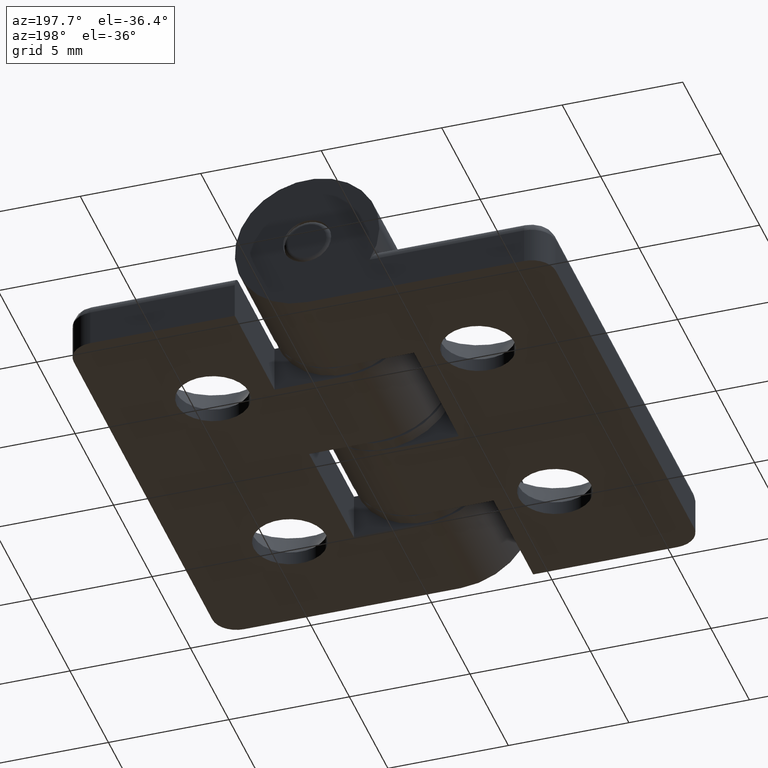
[diagram: clean part render]
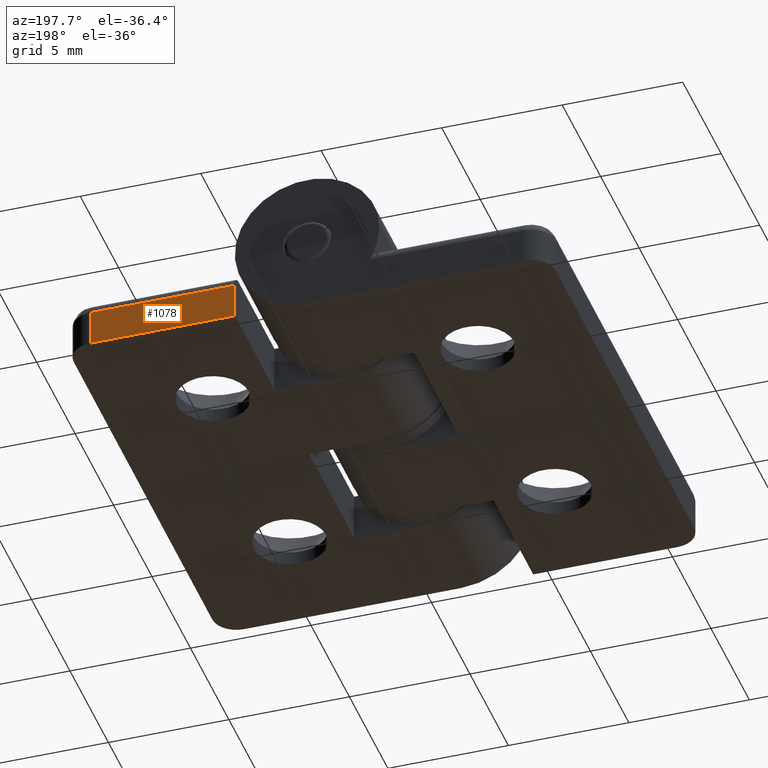
[diagram: same view with one face highlighted and labeled with its STEP entity id]
A machine part, auxiliary view. The second image highlights one B-rep face of the part: STEP entity #1078.
In plain terms, the highlighted planar face has unit normal (0, 1, 0).
Its self-contained STEP definition (entity closure, byte-faithful):
#107=PLANE('',#1215);
#180=FACE_OUTER_BOUND('',#284,.T.);
#284=EDGE_LOOP('',(#966,#967,#968,#969));
#322=LINE('',#1762,#388);
#340=LINE('',#1857,#406);
#341=LINE('',#1860,#407);
#353=LINE('',#1901,#419);
#388=VECTOR('',#1426,6.);
#406=VECTOR('',#1494,1.5);
#407=VECTOR('',#1497,1.5);
#419=VECTOR('',#1545,6.);
#542=VERTEX_POINT('',#1755);
#545=VERTEX_POINT('',#1760);
#569=VERTEX_POINT('',#1855);
#570=VERTEX_POINT('',#1859);
#660=EDGE_CURVE('',#545,#542,#322,.T.);
#694=EDGE_CURVE('',#569,#545,#340,.T.);
#695=EDGE_CURVE('',#570,#542,#341,.T.);
#715=EDGE_CURVE('',#569,#570,#353,.T.);
#966=ORIENTED_EDGE('',*,*,#660,.F.);
#967=ORIENTED_EDGE('',*,*,#694,.F.);
#968=ORIENTED_EDGE('',*,*,#715,.T.);
#969=ORIENTED_EDGE('',*,*,#695,.T.);
#1078=ADVANCED_FACE('',(#180),#107,.T.);
#1215=AXIS2_PLACEMENT_3D('',#1900,#1543,#1544);
#1426=DIRECTION('',(1.,1.11022302462516E-16,0.));
#1494=DIRECTION('',(0.,1.,0.));
#1497=DIRECTION('',(-1.2335811384724E-16,1.,0.));
#1543=DIRECTION('center_axis',(0.,0.,1.));
#1544=DIRECTION('ref_axis',(1.,0.,0.));
#1545=DIRECTION('',(1.,1.22464679914735E-16,0.));
#1755=CARTESIAN_POINT('',(-3.,1.5,10.));
#1760=CARTESIAN_POINT('',(-9.,1.5,10.));
#1762=CARTESIAN_POINT('',(1.85491307465449E-16,1.5,10.));
#1855=CARTESIAN_POINT('',(-9.,-1.10218211923262E-15,10.));
#1857=CARTESIAN_POINT('',(-9.,2.5,10.));
#1859=CARTESIAN_POINT('',(-3.,-3.67394039744206E-16,10.));
#1860=CARTESIAN_POINT('',(-3.,1.5,10.));
#1900=CARTESIAN_POINT('Origin',(1.48938010005867E-16,3.,10.));
#1901=CARTESIAN_POINT('',(0.,0.,10.));